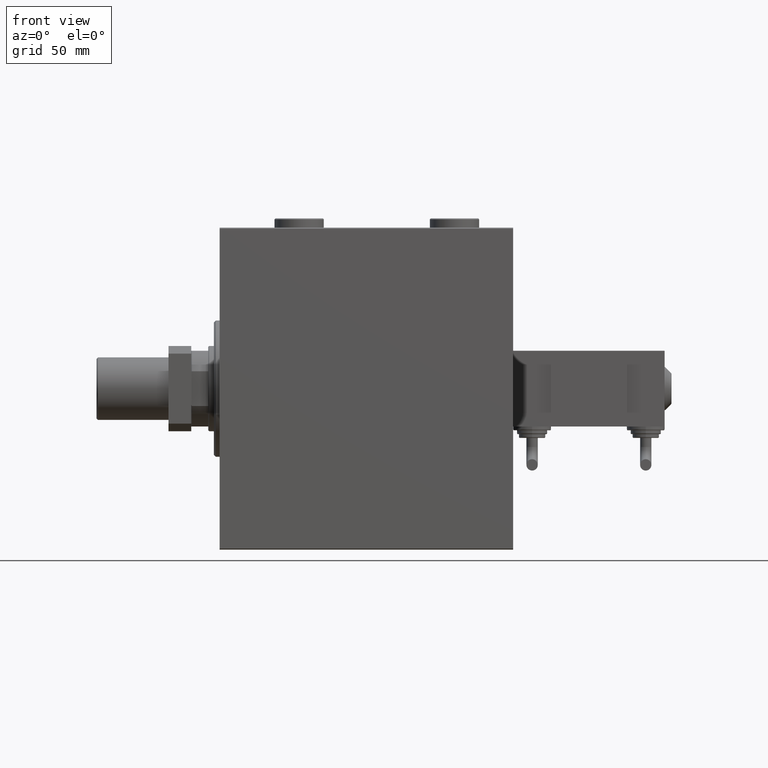
[diagram: clean part render]
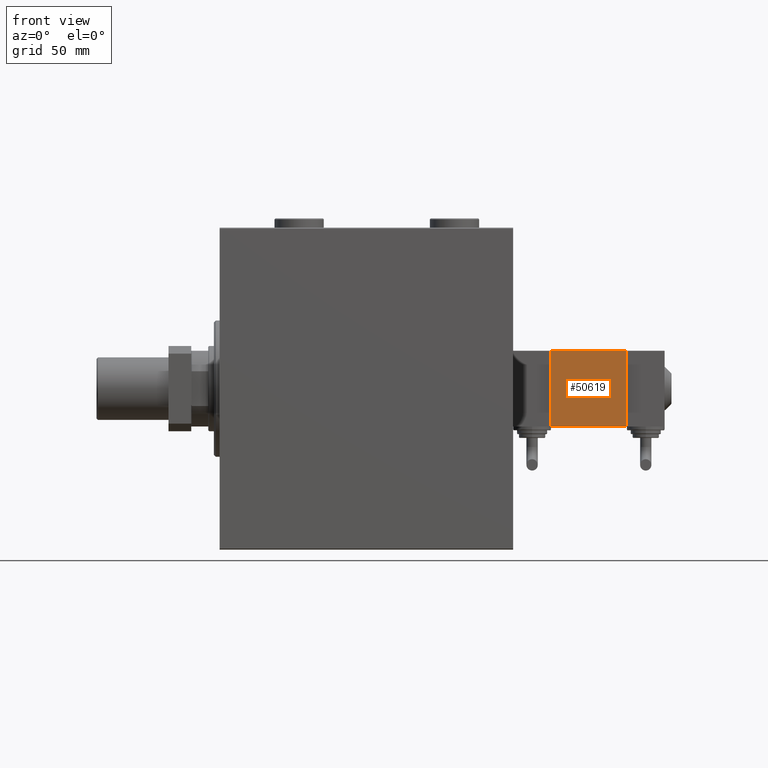
[diagram: same view with one face highlighted and labeled with its STEP entity id]
A machine part, front view. The second image highlights one B-rep face of the part: STEP entity #50619.
In plain terms, the highlighted planar face has unit normal (0, 1, 0).
Its self-contained STEP definition (entity closure, byte-faithful):
#3677 = CARTESIAN_POINT ( 'NONE',  ( -19.99999999999999289, -22.00000000000000000, 40.00000000000000000 ) ) ;
#4634 = LINE ( 'NONE', #13202, #44923 ) ;
#6010 = VERTEX_POINT ( 'NONE', #29272 ) ;
#7257 = VERTEX_POINT ( 'NONE', #3677 ) ;
#7460 = EDGE_CURVE ( 'NONE', #7257, #36860, #15320, .T. ) ;
#9198 = VECTOR ( 'NONE', #27632, 1000.000000000000000 ) ;
#10322 = EDGE_CURVE ( 'NONE', #7257, #40961, #40143, .T. ) ;
#11713 = LINE ( 'NONE', #44978, #51377 ) ;
#13202 = CARTESIAN_POINT ( 'NONE',  ( 20.00000000000000000, -22.00000000000000000, 40.00000000000000000 ) ) ;
#13412 = FACE_OUTER_BOUND ( 'NONE', #35705, .T. ) ;
#14153 = CARTESIAN_POINT ( 'NONE',  ( -19.99999999999999289, -22.00000000000000000, 0.000000000000000000 ) ) ;
#14597 = ORIENTED_EDGE ( 'NONE', *, *, #7460, .F. ) ;
#15320 = LINE ( 'NONE', #47335, #20773 ) ;
#17191 = AXIS2_PLACEMENT_3D ( 'NONE', #48829, #21219, #28760 ) ;
#18535 = ORIENTED_EDGE ( 'NONE', *, *, #10322, .T. ) ;
#19528 = DIRECTION ( 'NONE',  ( 1.000000000000000000, 0.000000000000000000, 0.000000000000000000 ) ) ;
#20773 = VECTOR ( 'NONE', #46576, 1000.000000000000000 ) ;
#21219 = DIRECTION ( 'NONE',  ( 0.000000000000000000, 1.000000000000000000, 0.000000000000000000 ) ) ;
#25607 = EDGE_CURVE ( 'NONE', #40961, #6010, #11713, .T. ) ;
#27089 = ORIENTED_EDGE ( 'NONE', *, *, #25607, .T. ) ;
#27632 = DIRECTION ( 'NONE',  ( -0.000000000000000000, -0.000000000000000000, -1.000000000000000000 ) ) ;
#28760 = DIRECTION ( 'NONE',  ( 0.000000000000000000, -0.000000000000000000, 1.000000000000000000 ) ) ;
#29272 = CARTESIAN_POINT ( 'NONE',  ( 20.00000000000000000, -22.00000000000000000, 0.000000000000000000 ) ) ;
#30898 = EDGE_CURVE ( 'NONE', #36860, #6010, #4634, .T. ) ;
#33872 = CARTESIAN_POINT ( 'NONE',  ( 20.00000000000000000, -22.00000000000000000, 40.00000000000000000 ) ) ;
#35705 = EDGE_LOOP ( 'NONE', ( #27089, #43502, #14597, #18535 ) ) ;
#36860 = VERTEX_POINT ( 'NONE', #33872 ) ;
#40143 = LINE ( 'NONE', #44055, #9198 ) ;
#40961 = VERTEX_POINT ( 'NONE', #14153 ) ;
#43502 = ORIENTED_EDGE ( 'NONE', *, *, #30898, .F. ) ;
#44055 = CARTESIAN_POINT ( 'NONE',  ( -19.99999999999999289, -22.00000000000000000, 40.00000000000000000 ) ) ;
#44923 = VECTOR ( 'NONE', #44988, 1000.000000000000000 ) ;
#44978 = CARTESIAN_POINT ( 'NONE',  ( -19.99999999999999289, -22.00000000000000000, 0.000000000000000000 ) ) ;
#44988 = DIRECTION ( 'NONE',  ( -0.000000000000000000, -0.000000000000000000, -1.000000000000000000 ) ) ;
#46576 = DIRECTION ( 'NONE',  ( 1.000000000000000000, 0.000000000000000000, 0.000000000000000000 ) ) ;
#47335 = CARTESIAN_POINT ( 'NONE',  ( -19.99999999999999289, -22.00000000000000000, 40.00000000000000000 ) ) ;
#48585 = PLANE ( 'NONE',  #17191 ) ;
#48829 = CARTESIAN_POINT ( 'NONE',  ( -19.99999999999999289, -22.00000000000000000, 40.00000000000000000 ) ) ;
#50619 = ADVANCED_FACE ( 'NONE', ( #13412 ), #48585, .F. ) ;
#51377 = VECTOR ( 'NONE', #19528, 1000.000000000000000 ) ;